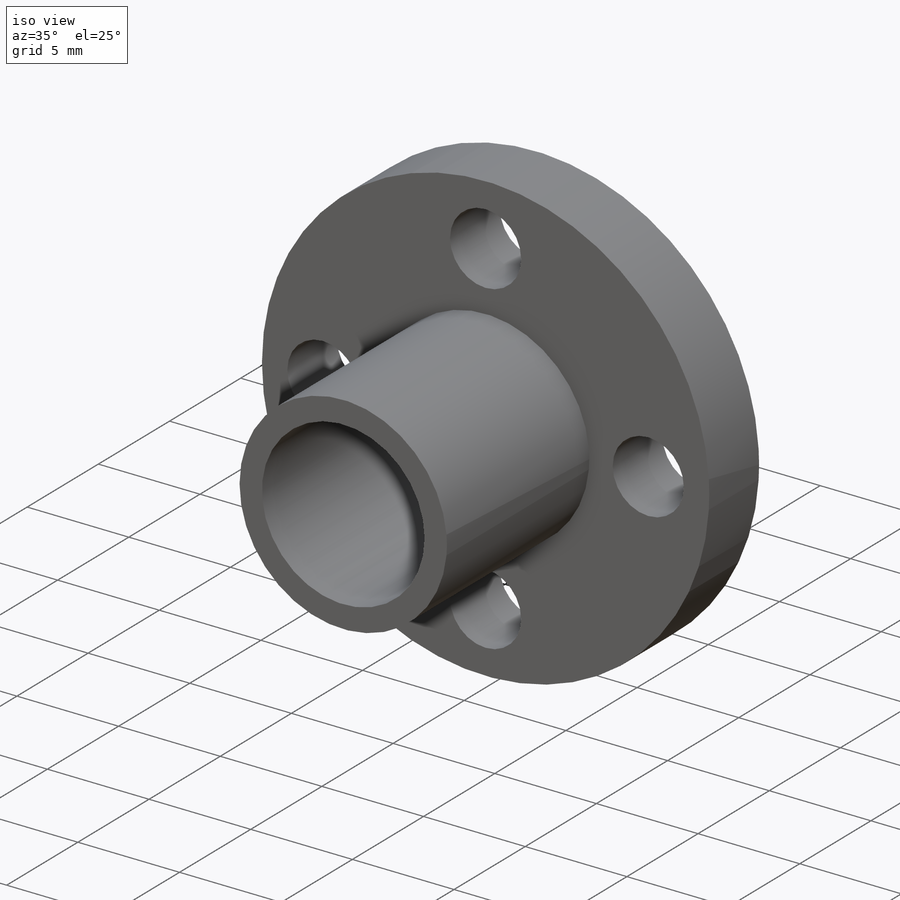
[diagram: iso view]
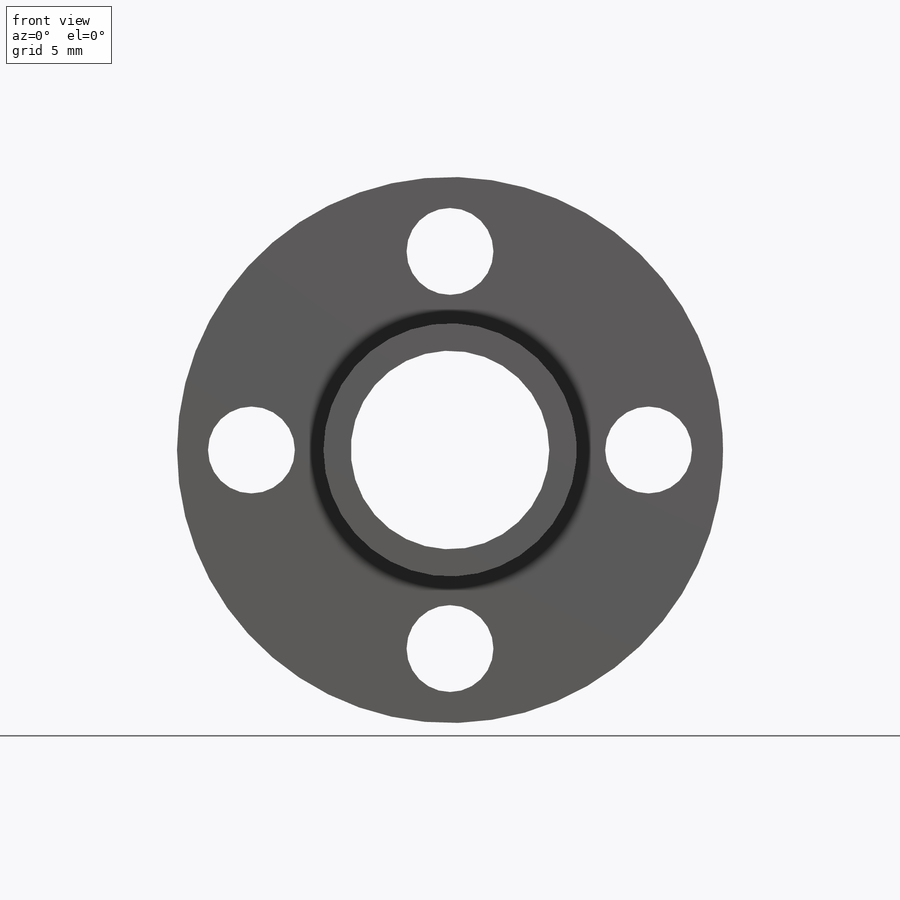
[diagram: front view]
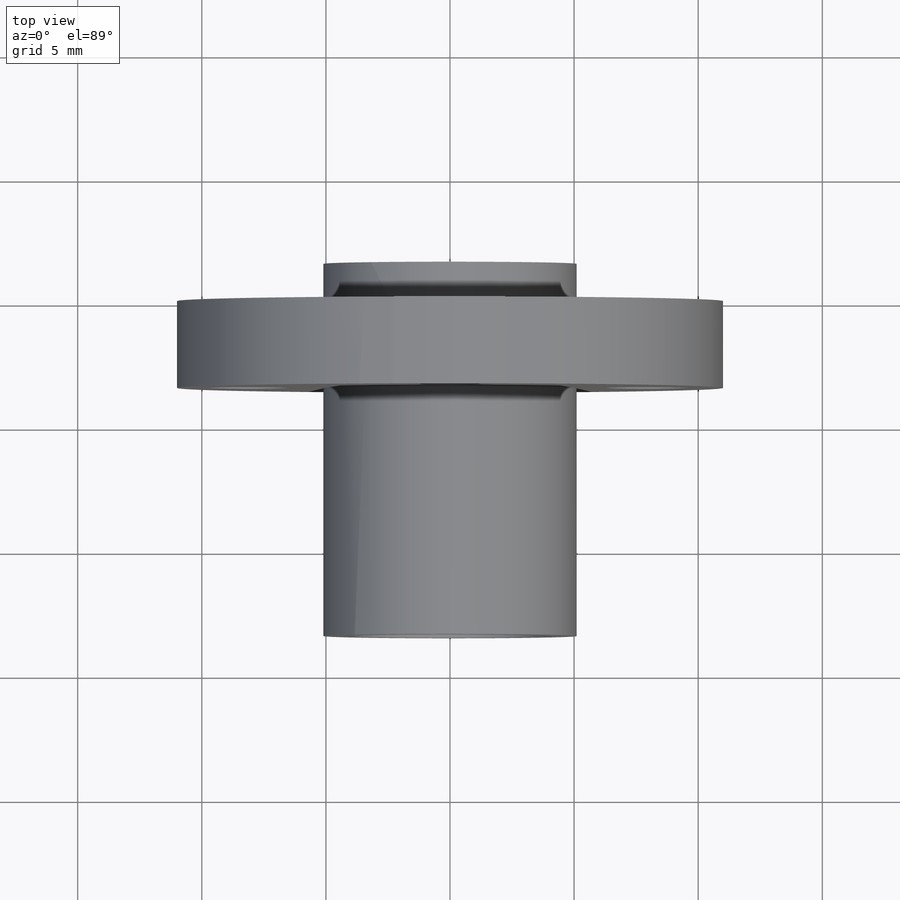
[diagram: top view]
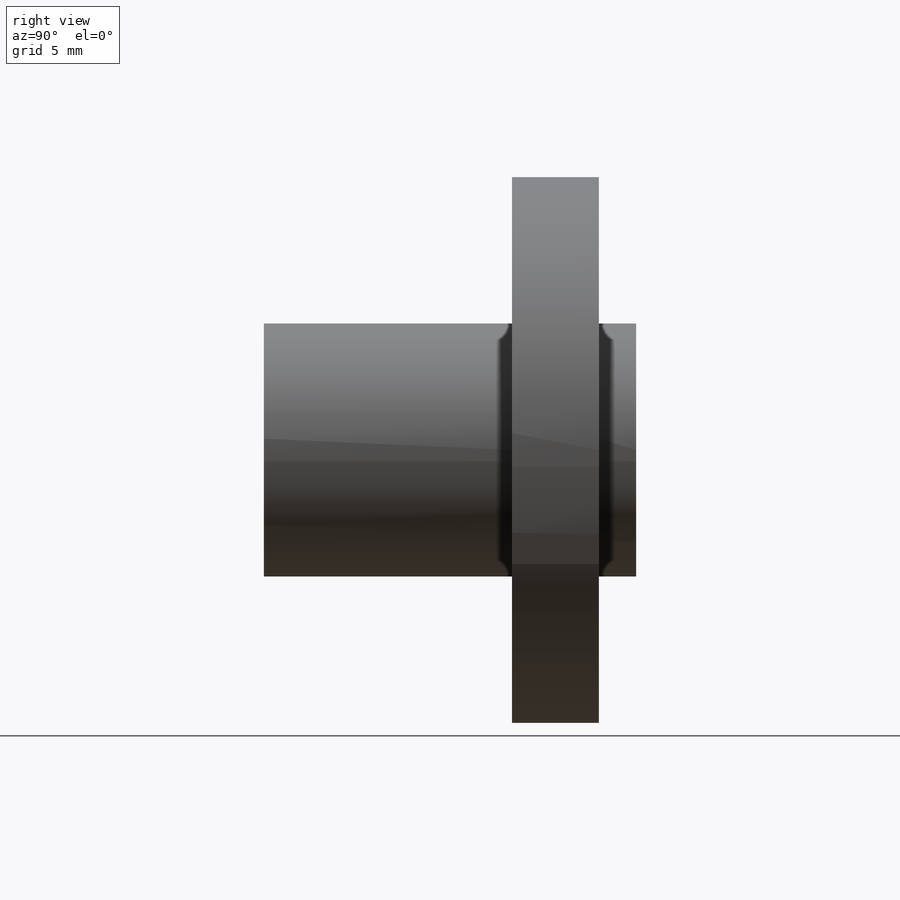
[diagram: right view]
SOLIDWORKS PART (.sldprt)
format: sldprt  version: not decoded by parser v0  size: 220,160 bytes
history: native  units: mm
features: sketch x4, plane x3, extrude x2, cut_extrude x2, material x1 (+9 scaffold rows collapsed)
feature tree (21):
  scaffold x9  (default folders/planes/origin — collapsed)
  material  "Material <not specified>"
  plane  "Plan de face"
  plane  "Plan de dessus"
  plane  "Plan de droite"
  sketch  "Sketch1"  dims[D1=8.0mm D2=22.0mm]
  extrude  "Boss-Extrude1"  Depth=3.5mm
  sketch  "Sketch2"  dims[D1=8.0mm]
  cut_extrude  "Cut-Extrude3"  [1 undecoded]
  sketch  "Sketch7"  dims[D1=8.0mm D2=10.2mm]
  extrude  "Boss-Extrude3"  Depth=5mm
  sketch  "Sketch10"  dims[D3=3.5mm D4=3.5mm D1=8.0mm D2=8.0mm]
  cut_extrude  "Cut-Extrude4"  [1 undecoded]
decode coverage: 6 of 8 modeling features carry decoded parameters
note: 2 parameter values undecoded
note: suppression state not decoded; provenance and decode notes live in map.json
